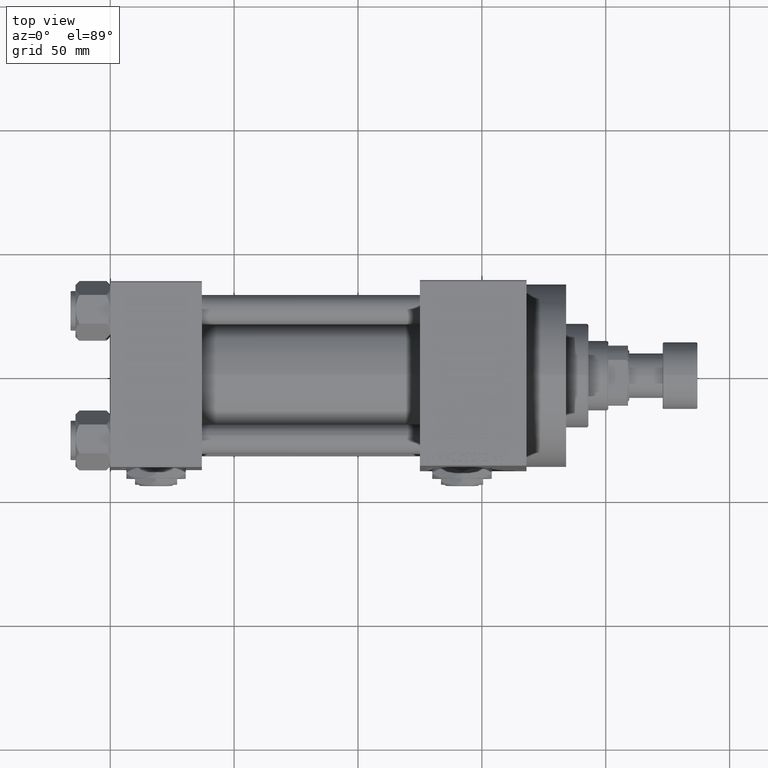
[diagram: clean part render]
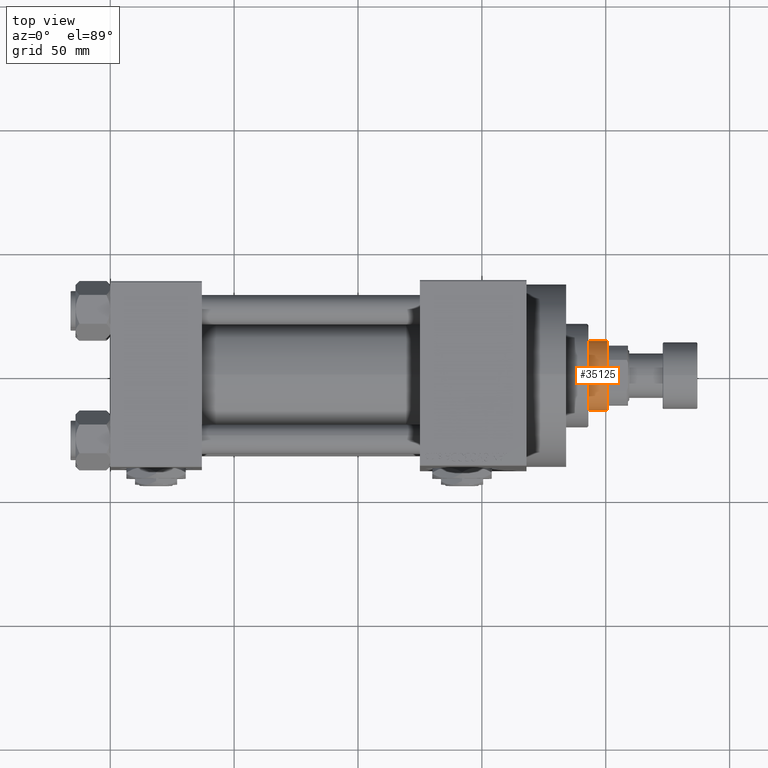
[diagram: same view with one face highlighted and labeled with its STEP entity id]
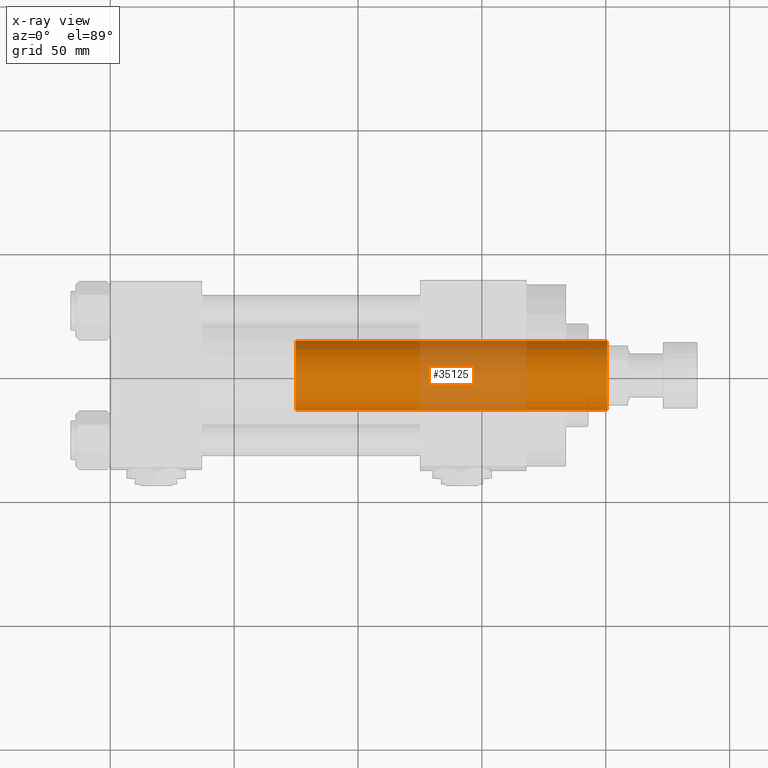
[diagram: x-ray of the same camera — body ghosted, the highlighted face saturated]
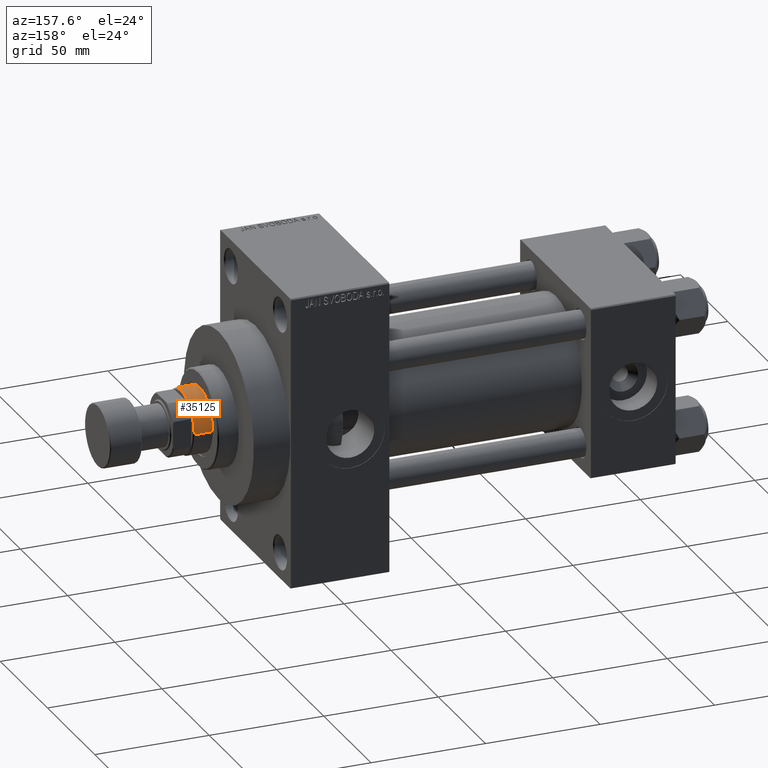
[diagram: same view with one face highlighted and labeled with its STEP entity id]
A machine part, top view. The second image highlights one B-rep face of the part: STEP entity #35125.
The next image is the same camera in x-ray: the body ghosted, the highlighted face saturated — about 34% of this face is hidden behind the body in this view.
A second angle (auxiliary view) of the same face is appended — the face is thin or edge-on in the first view.
In plain terms, the highlighted cylindrical surface (edge-blend (fillet) strip) has radius 14 mm, axis along (-1, 0, 0).
Its self-contained STEP definition (entity closure, byte-faithful):
#294 = VERTEX_POINT ( 'NONE', #12186 ) ;
#539 = CARTESIAN_POINT ( 'NONE',  ( -14.00000000000000178, 0.000000000000000000, 38.00000000000000000 ) ) ;
#598 = DIRECTION ( 'NONE',  ( -0.000000000000000000, -0.000000000000000000, -1.000000000000000000 ) ) ;
#3131 = CARTESIAN_POINT ( 'NONE',  ( 14.00000000000000178, 1.714505518806294835E-15, 164.0000000000000000 ) ) ;
#4379 = CARTESIAN_POINT ( 'NONE',  ( 0.000000000000000000, 0.000000000000000000, 164.0000000000000000 ) ) ;
#4883 = AXIS2_PLACEMENT_3D ( 'NONE', #12075, #43502, #43251 ) ;
#7435 = AXIS2_PLACEMENT_3D ( 'NONE', #4379, #598, #11190 ) ;
#10694 = CARTESIAN_POINT ( 'NONE',  ( 0.000000000000000000, 0.000000000000000000, 38.00000000000000000 ) ) ;
#11190 = DIRECTION ( 'NONE',  ( -1.000000000000000000, 0.000000000000000000, 0.000000000000000000 ) ) ;
#12075 = CARTESIAN_POINT ( 'NONE',  ( 0.000000000000000000, 0.000000000000000000, 163.5000000000000568 ) ) ;
#12186 = CARTESIAN_POINT ( 'NONE',  ( 14.00000000000000178, 1.714505518806294835E-15, 163.5000000000000568 ) ) ;
#13237 = ORIENTED_EDGE ( 'NONE', *, *, #20093, .T. ) ;
#17828 = ORIENTED_EDGE ( 'NONE', *, *, #31011, .T. ) ;
#18728 = DIRECTION ( 'NONE',  ( 1.000000000000000000, 0.000000000000000000, 0.000000000000000000 ) ) ;
#20093 = EDGE_CURVE ( 'NONE', #29288, #40106, #42343, .T. ) ;
#20149 = CIRCLE ( 'NONE', #4883, 14.00000000000000178 ) ;
#23513 = CYLINDRICAL_SURFACE ( 'NONE', #7435, 14.00000000000000178 ) ;
#26293 = LINE ( 'NONE', #3131, #36632 ) ;
#29273 = VECTOR ( 'NONE', #38328, 1000.000000000000000 ) ;
#29288 = VERTEX_POINT ( 'NONE', #35939 ) ;
#31011 = EDGE_CURVE ( 'NONE', #294, #29288, #20149, .T. ) ;
#33918 = ORIENTED_EDGE ( 'NONE', *, *, #46172, .T. ) ;
#34330 = DIRECTION ( 'NONE',  ( 0.000000000000000000, 0.000000000000000000, 1.000000000000000000 ) ) ;
#35078 = FACE_OUTER_BOUND ( 'NONE', #40388, .T. ) ;
#35125 = ADVANCED_FACE ( 'NONE', ( #35078 ), #23513, .T. ) ;
#35939 = CARTESIAN_POINT ( 'NONE',  ( -14.00000000000000178, 0.000000000000000000, 163.5000000000000568 ) ) ;
#36632 = VECTOR ( 'NONE', #38101, 1000.000000000000000 ) ;
#38101 = DIRECTION ( 'NONE',  ( -0.000000000000000000, -0.000000000000000000, -1.000000000000000000 ) ) ;
#38328 = DIRECTION ( 'NONE',  ( -0.000000000000000000, -0.000000000000000000, -1.000000000000000000 ) ) ;
#39291 = CARTESIAN_POINT ( 'NONE',  ( 14.00000000000000178, 1.714505518806294835E-15, 38.00000000000000000 ) ) ;
#39863 = CIRCLE ( 'NONE', #43056, 14.00000000000000178 ) ;
#40106 = VERTEX_POINT ( 'NONE', #539 ) ;
#40388 = EDGE_LOOP ( 'NONE', ( #42972, #17828, #13237, #33918 ) ) ;
#42100 = CARTESIAN_POINT ( 'NONE',  ( -14.00000000000000178, 0.000000000000000000, 164.0000000000000000 ) ) ;
#42343 = LINE ( 'NONE', #42100, #29273 ) ;
#42972 = ORIENTED_EDGE ( 'NONE', *, *, #46202, .F. ) ;
#43056 = AXIS2_PLACEMENT_3D ( 'NONE', #10694, #34330, #18728 ) ;
#43251 = DIRECTION ( 'NONE',  ( 1.000000000000000000, 0.000000000000000000, 0.000000000000000000 ) ) ;
#43502 = DIRECTION ( 'NONE',  ( 0.000000000000000000, 0.000000000000000000, -1.000000000000000000 ) ) ;
#46172 = EDGE_CURVE ( 'NONE', #40106, #46720, #39863, .T. ) ;
#46202 = EDGE_CURVE ( 'NONE', #294, #46720, #26293, .T. ) ;
#46720 = VERTEX_POINT ( 'NONE', #39291 ) ;